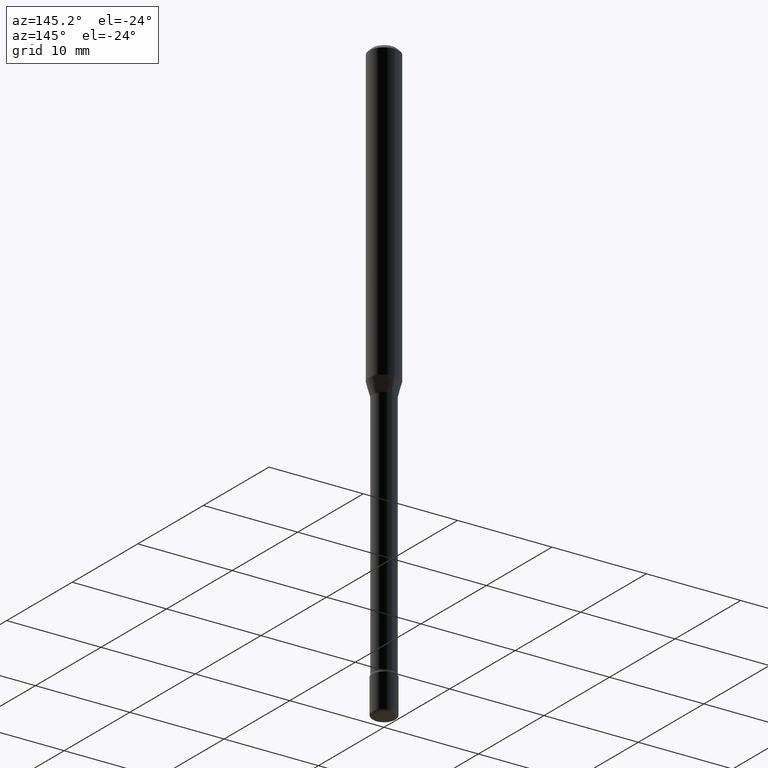
[diagram: clean part render]
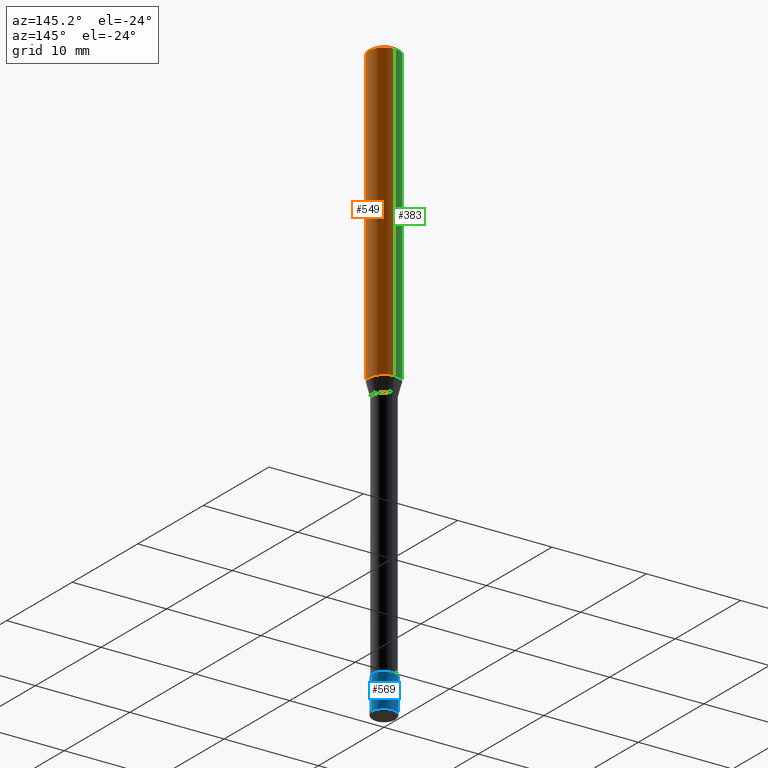
[diagram: same view with three faces highlighted in distinct colors, each labeled with its STEP entity id]
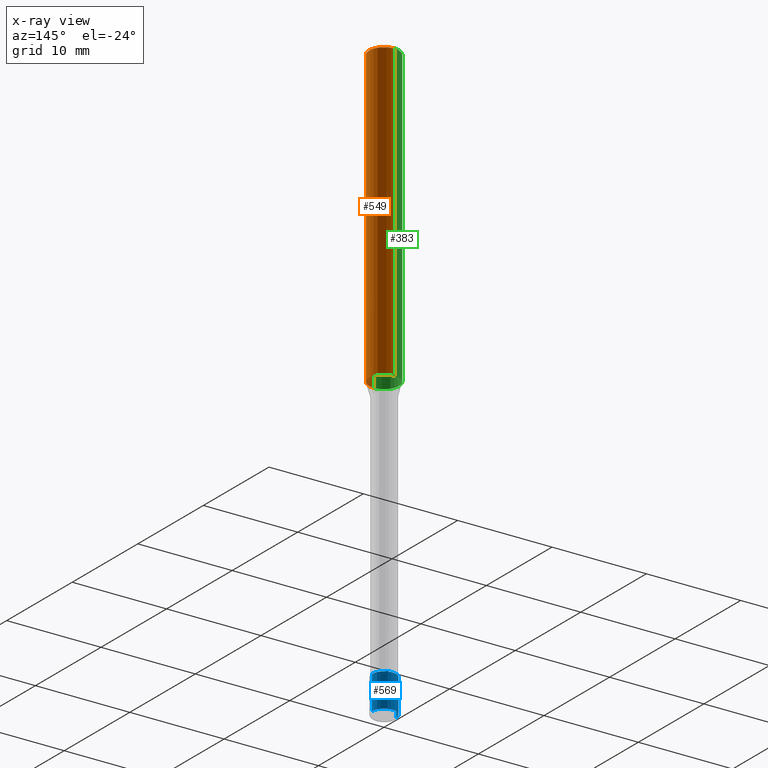
[diagram: x-ray of the same camera — body ghosted, the three highlighted faces saturated]
A machine part, auxiliary view with three faces highlighted in distinct colors.
The next image is the same camera in x-ray (body ghosted, the three faces saturated) — at least one of them is partly hidden behind the body in this view.
Their STEP definitions:

[orange] entity #549 — the highlighted cylindrical surface (edge-blend (fillet) strip) has radius 1.5875 mm, axis along (-0, 0, 1).
#20 = VECTOR ( 'NONE', #24, 39.37007874015748143 ) ;
#24 = DIRECTION ( 'NONE',  ( -2.445484649858063983E-29, 3.491458649801747802E-15, 1.000000000000000000 ) ) ;
#36 = DIRECTION ( 'NONE',  ( -6.982962677686265922E-15, -1.000000000000000000, 3.483106191921935554E-15 ) ) ;
#52 = EDGE_CURVE ( 'NONE', #235, #504, #135, .T. ) ;
#76 = ORIENTED_EDGE ( 'NONE', *, *, #552, .F. ) ;
#90 = EDGE_CURVE ( 'NONE', #504, #265, #121, .T. ) ;
#99 = EDGE_CURVE ( 'NONE', #235, #103, #327, .T. ) ;
#103 = VERTEX_POINT ( 'NONE', #370 ) ;
#121 = LINE ( 'NONE', #281, #20 ) ;
#126 = DIRECTION ( 'NONE',  ( -6.982962677686265922E-15, -1.000000000000000000, 4.370956789862821150E-15 ) ) ;
#135 = CIRCLE ( 'NONE', #488, 0.06250000000000000000 ) ;
#137 = CARTESIAN_POINT ( 'NONE',  ( 4.440892098500930859E-16, 0.06249999999999569789, -1.242153212482683067 ) ) ;
#156 = CARTESIAN_POINT ( 'NONE',  ( 3.037666613898282512E-29, -4.336926578101692093E-15, -1.242153212482682845 ) ) ;
#181 = CYLINDRICAL_SURFACE ( 'NONE', #198, 0.06250000000000000000 ) ;
#187 = VECTOR ( 'NONE', #459, 39.37007874015748143 ) ;
#196 = EDGE_LOOP ( 'NONE', ( #401, #330, #76, #335 ) ) ;
#198 = AXIS2_PLACEMENT_3D ( 'NONE', #350, #391, #487 ) ;
#200 = DIRECTION ( 'NONE',  ( -2.445484649858063703E-29, 3.491458649801748196E-15, 1.000000000000000000 ) ) ;
#210 = AXIS2_PLACEMENT_3D ( 'NONE', #482, #219, #36 ) ;
#219 = DIRECTION ( 'NONE',  ( -2.445484649858063703E-29, 3.491458649801748196E-15, 1.000000000000000000 ) ) ;
#235 = VERTEX_POINT ( 'NONE', #266 ) ;
#265 = VERTEX_POINT ( 'NONE', #397 ) ;
#266 = CARTESIAN_POINT ( 'NONE',  ( -4.364351673553610517E-16, -0.06250000000000430211, -1.242153212482682623 ) ) ;
#281 = CARTESIAN_POINT ( 'NONE',  ( 4.440892098500625669E-16, 0.06250000000000000000, 2.598572332786367763E-16 ) ) ;
#327 = LINE ( 'NONE', #471, #187 ) ;
#330 = ORIENTED_EDGE ( 'NONE', *, *, #90, .T. ) ;
#335 = ORIENTED_EDGE ( 'NONE', *, *, #99, .F. ) ;
#350 = CARTESIAN_POINT ( 'NONE',  ( -1.169113584055446105E-44, 1.669184350826100908E-30, 4.780733988912460139E-16 ) ) ;
#370 = CARTESIAN_POINT ( 'NONE',  ( -4.364351673553912750E-16, -0.06250000000000005551, -0.01499999999999981036 ) ) ;
#391 = DIRECTION ( 'NONE',  ( -2.445484649858063703E-29, 3.491458649801748196E-15, 1.000000000000000000 ) ) ;
#397 = CARTESIAN_POINT ( 'NONE',  ( 4.440892098500930859E-16, 0.06249999999999993755, -0.01500000000000024578 ) ) ;
#401 = ORIENTED_EDGE ( 'NONE', *, *, #52, .T. ) ;
#427 = CIRCLE ( 'NONE', #210, 0.06250000000000000000 ) ;
#440 = FACE_OUTER_BOUND ( 'NONE', #196, .T. ) ;
#459 = DIRECTION ( 'NONE',  ( -2.445484649858063983E-29, 3.491458649801747802E-15, 1.000000000000000000 ) ) ;
#471 = CARTESIAN_POINT ( 'NONE',  ( -4.364351673553916201E-16, -0.06250000000000000000, 6.962895645038553008E-16 ) ) ;
#482 = CARTESIAN_POINT ( 'NONE',  ( 3.668226974787102280E-31, -5.237187974702632377E-17, -0.01500000000000002720 ) ) ;
#487 = DIRECTION ( 'NONE',  ( -6.982962677686265922E-15, -1.000000000000000000, 3.491458649801747407E-15 ) ) ;
#488 = AXIS2_PLACEMENT_3D ( 'NONE', #156, #200, #126 ) ;
#504 = VERTEX_POINT ( 'NONE', #137 ) ;
#549 = ADVANCED_FACE ( 'NONE', ( #440 ), #181, .T. ) ;
#552 = EDGE_CURVE ( 'NONE', #103, #265, #427, .T. ) ;

[blue] entity #569 — the highlighted cylindrical surface (edge-blend (fillet) strip) has radius 1.27 mm, axis along (-0, 0, 1).
#5 = VERTEX_POINT ( 'NONE', #64 ) ;
#9 = CARTESIAN_POINT ( 'NONE',  ( 6.089217327400989947E-29, -8.693788533719431716E-15, -2.489999999999999769 ) ) ;
#13 = DIRECTION ( 'NONE',  ( -2.445468806185136877E-29, 3.491481338843145188E-15, 1.000000000000000000 ) ) ;
#15 = DIRECTION ( 'NONE',  ( -2.445468806185136597E-29, 3.491481338843145583E-15, 1.000000000000000000 ) ) ;
#17 = EDGE_LOOP ( 'NONE', ( #354, #456, #417, #144 ) ) ;
#31 = LINE ( 'NONE', #165, #441 ) ;
#38 = AXIS2_PLACEMENT_3D ( 'NONE', #395, #134, #346 ) ;
#64 = CARTESIAN_POINT ( 'NONE',  ( 0.05000000000000004441, -9.042936667603745051E-15, -2.489999999999999769 ) ) ;
#82 = LINE ( 'NONE', #420, #319 ) ;
#95 = CIRCLE ( 'NONE', #38, 0.05000000000000000278 ) ;
#105 = AXIS2_PLACEMENT_3D ( 'NONE', #9, #15, #194 ) ;
#114 = CARTESIAN_POINT ( 'NONE',  ( 0.05000000000000000278, -8.554129280165706697E-15, -2.350000000000000089 ) ) ;
#134 = DIRECTION ( 'NONE',  ( -2.445468806185136597E-29, 3.491481338843145583E-15, 1.000000000000000000 ) ) ;
#144 = ORIENTED_EDGE ( 'NONE', *, *, #164, .F. ) ;
#162 = AXIS2_PLACEMENT_3D ( 'NONE', #480, #570, #308 ) ;
#164 = EDGE_CURVE ( 'NONE', #5, #224, #31, .T. ) ;
#165 = CARTESIAN_POINT ( 'NONE',  ( 0.05000000000000000971, -3.491481338843134341E-16, 2.438088387897968597E-30 ) ) ;
#170 = DIRECTION ( 'NONE',  ( -2.445468806185136877E-29, 3.491481338843145188E-15, 1.000000000000000000 ) ) ;
#180 = EDGE_CURVE ( 'NONE', #5, #462, #240, .T. ) ;
#194 = DIRECTION ( 'NONE',  ( 1.000000000000000000, -6.982962677686273021E-15, 0.000000000000000000 ) ) ;
#204 = CARTESIAN_POINT ( 'NONE',  ( -0.05000000000000004441, -8.338517165839381307E-15, -2.489999999999999769 ) ) ;
#213 = CARTESIAN_POINT ( 'NONE',  ( -0.05000000000000000278, -8.094113472120361341E-15, -2.350000000000000089 ) ) ;
#224 = VERTEX_POINT ( 'NONE', #114 ) ;
#240 = CIRCLE ( 'NONE', #105, 0.05000000000000000971 ) ;
#308 = DIRECTION ( 'NONE',  ( 1.000000000000000000, -6.982962677686267499E-15, 4.876176775795936353E-29 ) ) ;
#319 = VECTOR ( 'NONE', #170, 39.37007874015748143 ) ;
#346 = DIRECTION ( 'NONE',  ( 1.000000000000000000, -6.982962677686274599E-15, 0.000000000000000000 ) ) ;
#354 = ORIENTED_EDGE ( 'NONE', *, *, #180, .T. ) ;
#365 = VERTEX_POINT ( 'NONE', #213 ) ;
#395 = CARTESIAN_POINT ( 'NONE',  ( 5.746851694535070554E-29, -8.204981146281391784E-15, -2.350000000000000089 ) ) ;
#417 = ORIENTED_EDGE ( 'NONE', *, *, #506, .F. ) ;
#420 = CARTESIAN_POINT ( 'NONE',  ( -0.05000000000000000971, 3.552713678800501620E-16, -2.459467545127453311E-30 ) ) ;
#433 = FACE_OUTER_BOUND ( 'NONE', #17, .T. ) ;
#441 = VECTOR ( 'NONE', #13, 39.37007874015748143 ) ;
#442 = EDGE_CURVE ( 'NONE', #462, #365, #82, .T. ) ;
#456 = ORIENTED_EDGE ( 'NONE', *, *, #442, .T. ) ;
#462 = VERTEX_POINT ( 'NONE', #204 ) ;
#480 = CARTESIAN_POINT ( 'NONE',  ( 0.000000000000000000, 0.000000000000000000, 0.000000000000000000 ) ) ;
#506 = EDGE_CURVE ( 'NONE', #224, #365, #95, .T. ) ;
#532 = CYLINDRICAL_SURFACE ( 'NONE', #162, 0.05000000000000000971 ) ;
#569 = ADVANCED_FACE ( 'NONE', ( #433 ), #532, .T. ) ;
#570 = DIRECTION ( 'NONE',  ( -2.445468806185136597E-29, 3.491481338843145583E-15, 1.000000000000000000 ) ) ;

[green] entity #383 — the highlighted cylindrical surface (edge-blend (fillet) strip) has radius 1.5875 mm, axis along (-0, 0, 1).
#20 = VECTOR ( 'NONE', #24, 39.37007874015748143 ) ;
#23 = CARTESIAN_POINT ( 'NONE',  ( -1.169113584055446105E-44, 1.669184350826100908E-30, 4.780733988912460139E-16 ) ) ;
#24 = DIRECTION ( 'NONE',  ( -2.445484649858063983E-29, 3.491458649801747802E-15, 1.000000000000000000 ) ) ;
#33 = CYLINDRICAL_SURFACE ( 'NONE', #332, 0.06250000000000000000 ) ;
#46 = EDGE_CURVE ( 'NONE', #504, #235, #93, .T. ) ;
#77 = CARTESIAN_POINT ( 'NONE',  ( 3.037666613898282512E-29, -4.336926578101692093E-15, -1.242153212482682845 ) ) ;
#90 = EDGE_CURVE ( 'NONE', #504, #265, #121, .T. ) ;
#93 = CIRCLE ( 'NONE', #393, 0.06250000000000000000 ) ;
#99 = EDGE_CURVE ( 'NONE', #235, #103, #327, .T. ) ;
#103 = VERTEX_POINT ( 'NONE', #370 ) ;
#121 = LINE ( 'NONE', #281, #20 ) ;
#137 = CARTESIAN_POINT ( 'NONE',  ( 4.440892098500930859E-16, 0.06249999999999569789, -1.242153212482683067 ) ) ;
#152 = EDGE_CURVE ( 'NONE', #265, #103, #171, .T. ) ;
#171 = CIRCLE ( 'NONE', #537, 0.06250000000000000000 ) ;
#187 = VECTOR ( 'NONE', #459, 39.37007874015748143 ) ;
#202 = DIRECTION ( 'NONE',  ( -2.445484649858063703E-29, 3.491458649801748196E-15, 1.000000000000000000 ) ) ;
#207 = DIRECTION ( 'NONE',  ( -2.445484649858063703E-29, 3.491458649801748196E-15, 1.000000000000000000 ) ) ;
#235 = VERTEX_POINT ( 'NONE', #266 ) ;
#246 = DIRECTION ( 'NONE',  ( -2.445484649858063703E-29, 3.491458649801748196E-15, 1.000000000000000000 ) ) ;
#265 = VERTEX_POINT ( 'NONE', #397 ) ;
#266 = CARTESIAN_POINT ( 'NONE',  ( -4.364351673553610517E-16, -0.06250000000000430211, -1.242153212482682623 ) ) ;
#280 = ORIENTED_EDGE ( 'NONE', *, *, #46, .T. ) ;
#281 = CARTESIAN_POINT ( 'NONE',  ( 4.440892098500625669E-16, 0.06250000000000000000, 2.598572332786367763E-16 ) ) ;
#292 = ORIENTED_EDGE ( 'NONE', *, *, #99, .T. ) ;
#313 = ORIENTED_EDGE ( 'NONE', *, *, #152, .F. ) ;
#326 = ORIENTED_EDGE ( 'NONE', *, *, #90, .F. ) ;
#327 = LINE ( 'NONE', #471, #187 ) ;
#332 = AXIS2_PLACEMENT_3D ( 'NONE', #23, #202, #372 ) ;
#357 = EDGE_LOOP ( 'NONE', ( #326, #280, #292, #313 ) ) ;
#370 = CARTESIAN_POINT ( 'NONE',  ( -4.364351673553912750E-16, -0.06250000000000005551, -0.01499999999999981036 ) ) ;
#372 = DIRECTION ( 'NONE',  ( -6.982962677686265922E-15, -1.000000000000000000, 3.491458649801747407E-15 ) ) ;
#383 = ADVANCED_FACE ( 'NONE', ( #385 ), #33, .T. ) ;
#385 = FACE_OUTER_BOUND ( 'NONE', #357, .T. ) ;
#393 = AXIS2_PLACEMENT_3D ( 'NONE', #77, #207, #514 ) ;
#397 = CARTESIAN_POINT ( 'NONE',  ( 4.440892098500930859E-16, 0.06249999999999993755, -0.01500000000000024578 ) ) ;
#421 = DIRECTION ( 'NONE',  ( -6.982962677686265922E-15, -1.000000000000000000, 3.483106191921935554E-15 ) ) ;
#459 = DIRECTION ( 'NONE',  ( -2.445484649858063983E-29, 3.491458649801747802E-15, 1.000000000000000000 ) ) ;
#471 = CARTESIAN_POINT ( 'NONE',  ( -4.364351673553916201E-16, -0.06250000000000000000, 6.962895645038553008E-16 ) ) ;
#504 = VERTEX_POINT ( 'NONE', #137 ) ;
#514 = DIRECTION ( 'NONE',  ( -6.982962677686265922E-15, -1.000000000000000000, 4.370956789862821150E-15 ) ) ;
#537 = AXIS2_PLACEMENT_3D ( 'NONE', #555, #246, #421 ) ;
#555 = CARTESIAN_POINT ( 'NONE',  ( 3.668226974787102280E-31, -5.237187974702632377E-17, -0.01500000000000002720 ) ) ;